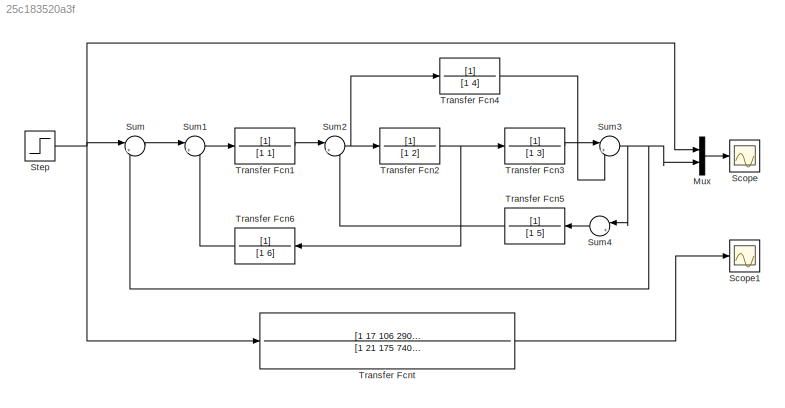
MODEL slx_25c183520a3f
KIND model
CONFIG AbsTol = auto
CONFIG FixedStep = auto
CONFIG MaxStep = auto
CONFIG MinStep = auto
CONFIG RelTol = 1e-3
CONFIG SampleTimeConstraint = Unconstrained
CONFIG Solver = VariableStepAuto
CONFIG SolverMode = Auto
CONFIG SolverName = VariableStepAuto
CONFIG StartTime = 0.0
CONFIG StopTime = 5
BLOCK [Mux] Mux
  DisplayOption = bar
  Inputs = 2
  Ports = [2, 1]
BLOCK [Scope] Scope
  Ports = [1]
  ScopeSpecificationString = Simulink.scopes.TimeScopeBlockCfg('CurrentConfiguration', extmgr.ConfigurationSet(extmgr.Configuration('Core','General UI',true),extmgr.Configuration('Core','Source UI',true),extmgr.Configuration('Sources','WiredSimulink',true),extmgr.Configuration('Visuals','Time Domain',true,'SerializedDisplays',{struct('MinYLimReal','-0.125','MaxYLimReal','1.125','YLabelReal','','MinYLimMag','0.00000','MaxYLimM...<+1344ch>
BLOCK [Scope] Scope1
  Ports = [1]
  ScopeSpecificationString = Simulink.scopes.TimeScopeBlockCfg('CurrentConfiguration', extmgr.ConfigurationSet(extmgr.Configuration('Core','General UI',true),extmgr.Configuration('Core','Source UI',true),extmgr.Configuration('Sources','WiredSimulink',true,'DataLoggingVariableName','ScopeData1'),extmgr.Configuration('Visuals','Time Domain',true,'SerializedDisplays',{struct('MinYLimReal','-0.03707','MaxYLimReal','0.3336','YLabe...<+1396ch>
BLOCK [Step] Step
  SampleTime = 0
BLOCK [Sum] Sum
  IconShape = round
  InputSameDT = off
  Inputs = |+-
  OutDataTypeStr = Inherit: Inherit via internal rule
  Ports = [2, 1]
  SaturateOnIntegerOverflow = off
BLOCK [Sum] Sum1
  IconShape = round
  InputSameDT = off
  Inputs = |+-
  OutDataTypeStr = Inherit: Inherit via internal rule
  Ports = [2, 1]
  SaturateOnIntegerOverflow = off
BLOCK [Sum] Sum2
  IconShape = round
  InputSameDT = off
  Inputs = |++
  OutDataTypeStr = Inherit: Inherit via internal rule
  Ports = [2, 1]
  SaturateOnIntegerOverflow = off
BLOCK [Sum] Sum3
  IconShape = round
  InputSameDT = off
  Inputs = |++
  OutDataTypeStr = Inherit: Inherit via internal rule
  Ports = [2, 1]
  SaturateOnIntegerOverflow = off
BLOCK [Sum] Sum4
  IconShape = round
  InputSameDT = off
  Inputs = |++
  OutDataTypeStr = Inherit: Inherit via internal rule
  Ports = [2, 1]
  SaturateOnIntegerOverflow = off
BLOCK [TransferFcn] Transfer Fcn1
  Denominator = [1 1]
BLOCK [TransferFcn] Transfer Fcn2
  Denominator = [1 2]
BLOCK [TransferFcn] Transfer Fcn3
  Denominator = [1 3]
BLOCK [TransferFcn] Transfer Fcn4
  Denominator = [1 4]
BLOCK [TransferFcn] Transfer Fcn5
  Denominator = [1 5]
BLOCK [TransferFcn] Transfer Fcn6
  Denominator = [1 6]
BLOCK [TransferFcn] Transfer Fcnt
  Denominator = [1 21 175 740 1684 1995 1020]
  Numerator = [1 17 106 290 300]
LINE Mux:1 -> Scope:1
NET Step:1 -> Mux:1, Sum:1, Transfer Fcnt:1
LINE Sum1:1 -> Transfer Fcn1:1
NET Sum2:1 -> Transfer Fcn2:1, Transfer Fcn4:1
NET Sum3:1 -> Mux:2, Sum4:1, Sum:2
LINE Sum4:1 -> Transfer Fcn5:1
LINE Sum:1 -> Sum1:1
LINE Transfer Fcn1:1 -> Sum2:1
NET Transfer Fcn2:1 -> Transfer Fcn3:1, Transfer Fcn6:1
LINE Transfer Fcn3:1 -> Sum3:1
LINE Transfer Fcn4:1 -> Sum3:2
LINE Transfer Fcn5:1 -> Sum2:2
LINE Transfer Fcn6:1 -> Sum1:2
LINE Transfer Fcnt:1 -> Scope1:1
note: NET lines group one-source signal fan-out (src -> all destinations, sorted); 1:1 wires keep LINE
